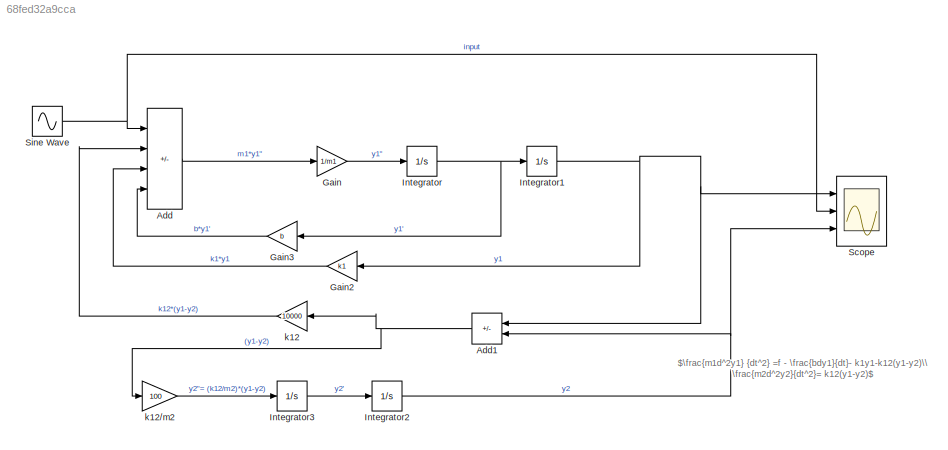
MODEL slx_68fed32a9cca
KIND model
CONFIG AbsTol = auto
CONFIG EnableMultiTasking = off
CONFIG FixedStep = auto
CONFIG MaxStep = 0.001
CONFIG MinStep = auto
CONFIG RelTol = 1e-3
CONFIG SampleTimeConstraint = Unconstrained
CONFIG SolverName = VariableStepAuto
CONFIG StartTime = 0.0
CONFIG StopTime = 100
WORKSPACE source: mxarray member
WORKSPACE b: Simulink.Parameter (value not decoded)
WORKSPACE k1: Simulink.Parameter (value not decoded)
WORKSPACE m1: Simulink.Parameter (value not decoded)
BLOCK [Sum] Add
  IconShape = rectangular
  Inputs = +---
  Ports = [4, 1]
BLOCK [Sum] Add1
  IconShape = rectangular
  Inputs = +-
  NameLocation = top
  Ports = [2, 1]
BLOCK [Gain] Gain
  Gain = 1/m1
BLOCK [Gain] Gain2
  Gain = k1
  NameLocation = top
BLOCK [Gain] Gain3
  Gain = b
  NameLocation = top
BLOCK [Integrator] Integrator
  Ports = [1, 1]
BLOCK [Integrator] Integrator1
  Ports = [1, 1]
BLOCK [Integrator] Integrator2
  Ports = [1, 1]
BLOCK [Integrator] Integrator3
  Ports = [1, 1]
BLOCK [Scope] Scope
  Floating = off
  NumInputPorts = 3
  Ports = [3]
  ScopeSpecificationString = Simulink.scopes.TimeScopeBlockCfg('CurrentConfiguration', extmgr.ConfigurationSet(extmgr.Configuration('Core','General UI',true),extmgr.Configuration('Core','Source UI',true),extmgr.Configuration('Sources','WiredSimulink',true),extmgr.Configuration('Visuals','Time Domain',true,'SerializedDisplays',{struct('MinYLimReal','-0.00092','MaxYLimReal','0.00174','YLabelReal','','MinYLimMag','0.00000','MaxY...<+2691ch>
BLOCK [Sin] Sine Wave
  Amplitude = 2
  Frequency = 10
  Ports = [0, 1]
  SampleTime = 0
BLOCK [Gain] k12
  Gain = 10000
  NameLocation = top
BLOCK [Gain] k12//m2
  Gain = 100
ANNOTATION (root): $\frac{m1d^2y1} {dt^2} =f - \frac{bdy1}{dt}- k1y1-k12(y1-y2)\\ \frac{m2d^2y2}{dt^2}= k12(y1-y2)$
NET Add1:1 -> k12//m2:1, k12:1
LINE Add:1 -> Gain:1
LINE Gain2:1 -> Add:3
LINE Gain3:1 -> Add:4
LINE Gain:1 -> Integrator:1
NET Integrator1:1 -> Add1:1, Gain2:1, Scope:1
NET Integrator2:1 -> Add1:2, Scope:3
LINE Integrator3:1 -> Integrator2:1
NET Integrator:1 -> Gain3:1, Integrator1:1
NET Sine Wave:1 -> Add:1, Scope:2
LINE k12//m2:1 -> Integrator3:1
LINE k12:1 -> Add:2
note: NET lines group one-source signal fan-out (src -> all destinations, sorted); 1:1 wires keep LINE
